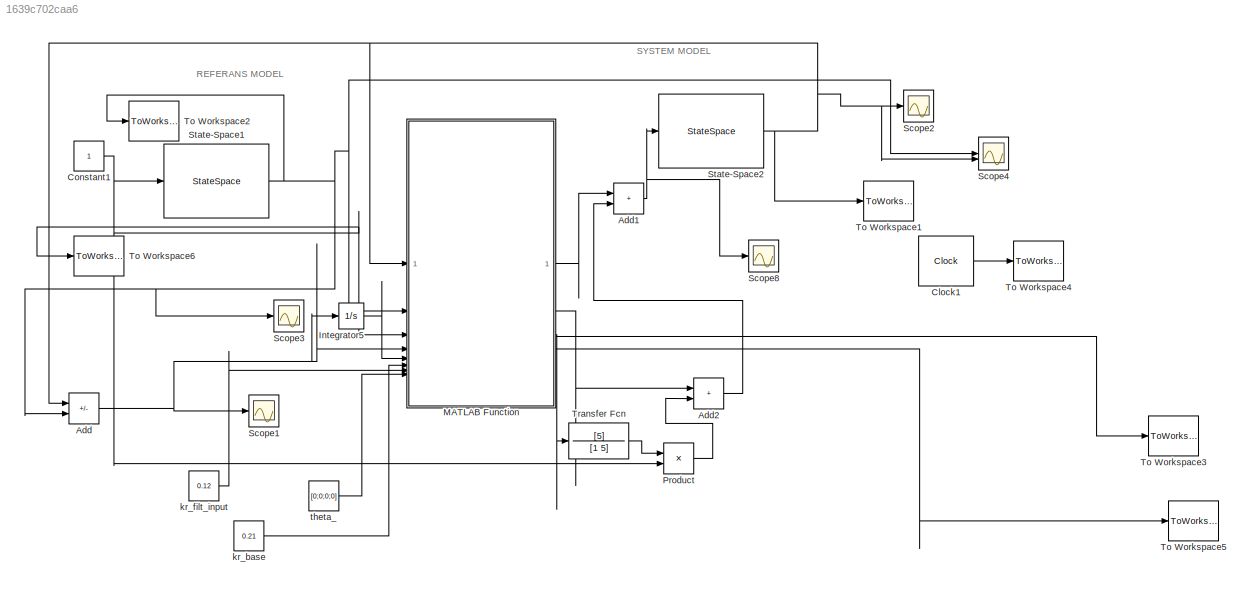
MODEL slx_1639c702caa6
KIND model
CONFIG AbsTol = auto
CONFIG EnableMultiTasking = off
CONFIG FixedStep = 0.001
CONFIG MaxStep = auto
CONFIG MinStep = auto
CONFIG RelTol = 1e-3
CONFIG SampleTimeConstraint = Unconstrained
CONFIG SolverName = ode5
CONFIG StartTime = 0.0
CONFIG StopTime = 120
BLOCK [Sum] Add
  IconShape = rectangular
  Inputs = +-
BLOCK [Sum] Add1
  IconShape = rectangular
BLOCK [Sum] Add2
  IconShape = rectangular
BLOCK [Clock] Clock1
  Decimation = 1
  DisplayTime = on
BLOCK [Constant] Constant1
  SampleTime = -1
BLOCK [Integrator] Integrator5
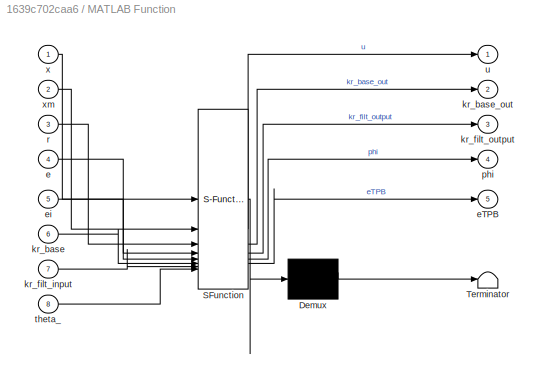
BLOCK [SubSystem] MATLAB Function
  ErrorFcn = Stateflow.Translate.translate
  LibrarySourceBlock = simulink/User-Defined\nFunctions/MATLAB Function
  PermitHierarchicalResolution = ExplicitOnly
  SFBlockType = MATLAB Function
  TreatAsAtomicUnit = on
BLOCK [Demux] MATLAB Function/ Demux 
  Outputs = 1
BLOCK [S-Function] MATLAB Function/ SFunction 
  EnableBusSupport = on
  FunctionName = sf_sfun
  PortCounts = [8 6]
  SFcnIsStateOwnerBlock = off
  SFunctionDeploymentMode = off
  Tag = Stateflow S-Function 2
BLOCK [Terminator] MATLAB Function/ Terminator 
BLOCK [Inport] MATLAB Function/e
  Port = 4
BLOCK [Outport] MATLAB Function/eTPB
  Port = 5
BLOCK [Inport] MATLAB Function/ei
  Port = 5
BLOCK [Inport] MATLAB Function/kr_base
  Port = 6
BLOCK [Outport] MATLAB Function/kr_base_out
  Port = 2
BLOCK [Inport] MATLAB Function/kr_filt_input
  Port = 7
BLOCK [Outport] MATLAB Function/kr_filt_output
  Port = 3
BLOCK [Outport] MATLAB Function/phi
  Port = 4
BLOCK [Inport] MATLAB Function/r
  Port = 3
BLOCK [Inport] MATLAB Function/theta_
  Port = 8
BLOCK [Outport] MATLAB Function/u
BLOCK [Inport] MATLAB Function/x
BLOCK [Inport] MATLAB Function/xm
  Port = 2
BLOCK [Product] Product
BLOCK [Scope] Scope1
  Floating = off
  NumInputPorts = 1
  ScopeSpecificationString = Simulink.scopes.TimeScopeBlockCfg('CurrentConfiguration', extmgr.ConfigurationSet(extmgr.Configuration('Core','General UI',true),extmgr.Configuration('Core','Source UI',true),extmgr.Configuration('Sources','WiredSimulink',true,'DataLoggingVariableName','ScopeData1'),extmgr.Configuration('Visuals','Time Domain',true,'SerializedDisplays',{struct('MinYLimReal','-0.18','MaxYLimReal','0.02','YLabelReal...<+1354ch>
BLOCK [Scope] Scope2
  Floating = off
  NumInputPorts = 1
  ScopeSpecificationString = Simulink.scopes.TimeScopeBlockCfg('CurrentConfiguration', extmgr.ConfigurationSet(extmgr.Configuration('Core','General UI',true),extmgr.Configuration('Core','Source UI',true),extmgr.Configuration('Sources','WiredSimulink',true,'DataLoggingVariableName','ScopeData2'),extmgr.Configuration('Visuals','Time Domain',true,'SerializedDisplays',{struct('MinYLimReal','-0.00966','MaxYLimReal','0.0817','YLabe...<+1386ch>
BLOCK [Scope] Scope3
  Floating = off
  NumInputPorts = 1
  ScopeSpecificationString = Simulink.scopes.TimeScopeBlockCfg('CurrentConfiguration', extmgr.ConfigurationSet(extmgr.Configuration('Core','General UI',true),extmgr.Configuration('Core','Source UI',true),extmgr.Configuration('Sources','WiredSimulink',true,'DataLoggingVariableName','ScopeData3'),extmgr.Configuration('Visuals','Time Domain',true,'SerializedDisplays',{struct('MinYLimReal','-1.00000','MaxYLimReal','1.00000','YLab...<+1390ch>
BLOCK [Scope] Scope4
  Floating = off
  NumInputPorts = 2
  ScopeSpecificationString = Simulink.scopes.TimeScopeBlockCfg('CurrentConfiguration', extmgr.ConfigurationSet(extmgr.Configuration('Core','General UI',true),extmgr.Configuration('Core','Source UI',true),extmgr.Configuration('Sources','WiredSimulink',true,'DataLoggingVariableName','ScopeData4'),extmgr.Configuration('Visuals','Time Domain',true,'SerializedDisplays',{struct('MinYLimReal','-0.14273','MaxYLimReal','1.2077','YLabe...<+1388ch>
BLOCK [Scope] Scope8
  Floating = off
  NumInputPorts = 1
  ScopeSpecificationString = Simulink.scopes.TimeScopeBlockCfg('CurrentConfiguration', extmgr.ConfigurationSet(extmgr.Configuration('Core','General UI',true),extmgr.Configuration('Core','Source UI',true),extmgr.Configuration('Sources','WiredSimulink',true,'DataLoggingVariableName','ScopeData2'),extmgr.Configuration('Visuals','Time Domain',true,'SerializedDisplays',{struct('MinYLimReal','-0.05448','MaxYLimReal','0.17039','YLab...<+1363ch>
BLOCK [StateSpace] State-Space1
  A = [0 1;-0.23 -0.71]
  B = [0;0.23]
  C = [1 0;0 1]
  D = [0;0]
  InitialCondition = 0
BLOCK [StateSpace] State-Space2
  A = [-0.0714 61;-1 -300]
  B = [0;10]
  C = [1 0;0 1]
  D = [0;0]
  InitialCondition = 0
BLOCK [ToWorkspace] To Workspace1
  MaxDataPoints = inf
  SampleTime = -1
  SaveFormat = Structure With Time
  VariableName = X
BLOCK [ToWorkspace] To Workspace2
  MaxDataPoints = inf
  SampleTime = -1
  SaveFormat = Structure With Time
  VariableName = Xm
BLOCK [ToWorkspace] To Workspace3
  MaxDataPoints = inf
  SampleTime = -1
  SaveFormat = Structure With Time
  VariableName = eTPB
BLOCK [ToWorkspace] To Workspace4
  MaxDataPoints = inf
  SampleTime = -1
  SaveFormat = Structure With Time
  VariableName = t
BLOCK [ToWorkspace] To Workspace5
  MaxDataPoints = inf
  SampleTime = -1
  SaveFormat = Structure With Time
  VariableName = phi
BLOCK [ToWorkspace] To Workspace6
  MaxDataPoints = inf
  SampleTime = -1
  SaveFormat = Structure With Time
  VariableName = r
BLOCK [TransferFcn] Transfer Fcn
  Denominator = [1 5]
  Numerator = [5]
BLOCK [Constant] kr_base
  SampleTime = -1
  Value = 0.21
BLOCK [Constant] kr_filt_input
  SampleTime = -1
  Value = 0.12
BLOCK [Constant] theta_
  SampleTime = -1
  Value = [0;0;0;0]
  VectorParams1D = off
ANNOTATION (root): REFERANS MODEL
ANNOTATION (root): SYSTEM MODEL
NET Add1:1 -> Scope8:1, State-Space2:1
LINE Add2:1 -> Add1:2
NET Add:1 -> Integrator5:1, MATLAB Function:4, Scope1:1
LINE Clock1:1 -> To Workspace4:1
NET Constant1:1 -> MATLAB Function:3, Product:2, State-Space1:1, To Workspace6:1
LINE Integrator5:1 -> MATLAB Function:5
LINE MATLAB Function:1 -> Add1:1
LINE MATLAB Function:2 -> Add2:1
LINE MATLAB Function:3 -> Transfer Fcn:1
LINE MATLAB Function:4 -> To Workspace5:1
LINE MATLAB Function:5 -> To Workspace3:1
LINE Product:1 -> Add2:2
NET State-Space1:1 -> Add:2, MATLAB Function:2, Scope3:1, Scope4:1, To Workspace2:1
NET State-Space2:1 -> Add:1, MATLAB Function:1, Scope2:1, Scope4:2, To Workspace1:1
LINE Transfer Fcn:1 -> Product:1
LINE kr_base:1 -> MATLAB Function:6
LINE kr_filt_input:1 -> MATLAB Function:7
LINE theta_:1 -> MATLAB Function:8
note: NET lines group one-source signal fan-out (src -> all destinations, sorted); 1:1 wires keep LINE
CHART MATLAB Function states=1 transitions=1
  STATE_LABEL 'eML_blk_kernel()'
  STATE_LABEL "SCRIPT:\nfunction [u, kr_base_out, kr_filt_output,phi,eTPB] = fcn(x, xm, r, e, ei,kr_base,kr_filt_input,theta_)\n\n    \n\n    P = [2.799 3.125; 3.125 6.359];\n    B = [0; 1];\n\n    phi = [x; ei];\n    eTPB = e' * P * B;\n\n   kr_base_out=kr_base;\n   kr_filt_output=kr_filt_input;\n    Kr = [-0.16; -0.57];\n    % Kontrol sinyali\n    % kr = kr_base + kr_filt_output → bu hesap Simulink'te yapılmalı\n    % (yani T...<+60ch>"
CHART  states=0 transitions=0
